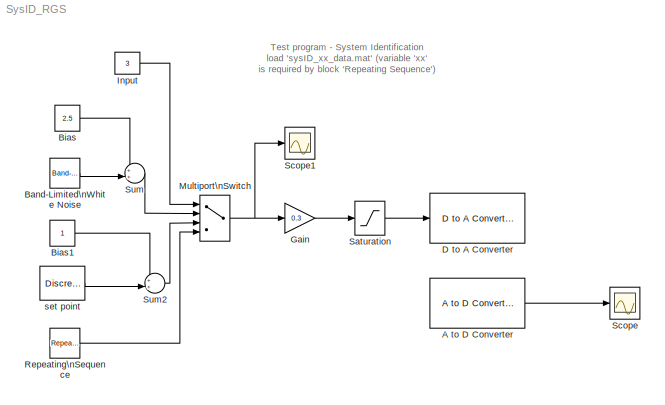
MODEL SysID_RGS
KIND model
CONFIG PreLoadFcn = load sysID_velocity.mat
BLOCK [Reference] A to D Converter  REF=mc9s12tool/A to D Converter
  FunctionWithSeparateData = off
  Ports = [0, 1]
  RTWMemSecDataConstants = Inherit from model
  RTWMemSecDataInternal = Inherit from model
  RTWMemSecDataParameters = Inherit from model
  RTWMemSecFuncExecute = Inherit from model
  RTWMemSecFuncInitTerm = Inherit from model
  SID = 18
  ShowPortLabels = none
  SourceBlock = mc9s12tool/A to D Converter
  SourceType = Unknown
  SystemSampleTime = -1
  Tag = mcTarget_adc
  bank = 0
  channels = 3
  normalize = max. output:  5
  sampletime = 0.01
  use10bits = 10 bits
BLOCK [Reference] Band-Limited\nWhite Noise  REF=simulink/Sources/Band-Limited\nWhite Noise
  Cov = [0.05]
  FunctionWithSeparateData = off
  Ports = [0, 1]
  RTWMemSecDataConstants = Inherit from model
  RTWMemSecDataInternal = Inherit from model
  RTWMemSecDataParameters = Inherit from model
  RTWMemSecFuncExecute = Inherit from model
  RTWMemSecFuncInitTerm = Inherit from model
  SID = 2
  ShowPortLabels = FromPortIcon
  SourceBlock = simulink/Sources/Band-Limited\nWhite Noise
  SourceProductBaseCode = SL
  SourceProductName = Simulink
  SourceType = Band-Limited White Noise.
  SystemSampleTime = -1
  Ts = 0.1
  VectorParams1D = on
  seed = [23341]
BLOCK [Constant] Bias
  SID = 3
  Value = 2.5
BLOCK [Constant] Bias1
  SID = 4
BLOCK [Reference] D to A Converter  REF=mc9s12tool/D to A Converter
  FunctionWithSeparateData = off
  Ports = [1]
  RTWMemSecDataConstants = Inherit from model
  RTWMemSecDataInternal = Inherit from model
  RTWMemSecDataParameters = Inherit from model
  RTWMemSecFuncExecute = Inherit from model
  RTWMemSecFuncInitTerm = Inherit from model
  SID = 19
  ShowPortLabels = FromPortIcon
  SourceBlock = mc9s12tool/D to A Converter
  SourceType = Unknown
  SystemSampleTime = -1
  Tag = mcTarget_dac
  Vsat = 5
  dac_channel = 0
  sampletime = 0.01
BLOCK [Gain] Gain
  Gain = 0.3
  SID = 6
BLOCK [Constant] Input
  SID = 7
  Value = 3
BLOCK [MultiPortSwitch] Multiport\nSwitch
  InputSameDT = off
  Ports = [4, 1]
  SID = 8
BLOCK [Reference] Repeating\nSequence  REF=simulink/Sources/Repeating\nSequence
  FunctionWithSeparateData = off
  Ports = [0, 1]
  RTWMemSecDataConstants = Inherit from model
  RTWMemSecDataInternal = Inherit from model
  RTWMemSecDataParameters = Inherit from model
  RTWMemSecFuncExecute = Inherit from model
  RTWMemSecFuncInitTerm = Inherit from model
  SID = 9
  ShowPortLabels = FromPortIcon
  SourceBlock = simulink/Sources/Repeating\nSequence
  SourceProductBaseCode = SL
  SourceProductName = Simulink
  SourceType = Repeating table
  SystemSampleTime = -1
  rep_seq_t = t
  rep_seq_y = s
BLOCK [Saturate] Saturation
  InputPortMap = u0
  LowerLimit = 0
  Ports = [1, 1]
  SID = 10
  UpperLimit = 5
BLOCK [Scope] Scope
  ExtModeUploadOption = log
  Floating = off
  NumInputPorts = 1
  Ports = [1]
  SID = 11
  ScopeSpecificationString = C++SS(StrPVP('Location','[667, 491, 991, 730]'),StrPVP('Open','off'),MxPVP('AxesTitles',54,'struct(''axes1'',''%<SignalLabel>'')'),StrPVP('TimeRange','8'),StrPVP('YMin','-0.5'),StrPVP('YMax','5.5'),StrPVP('SaveToWorkspace','on'),StrPVP('SaveName','y'),StrPVP('DataFormat','StructureWithTime'),StrPVP('LimitDataPoints','off'),StrPVP('Decimation','1'),StrPVP('BlockParamSampleInput','off'))
BLOCK [Scope] Scope1
  ExtModeUploadOption = log
  Floating = off
  NumInputPorts = 1
  Ports = [1]
  SID = 12
  ScopeSpecificationString = C++SS(StrPVP('Location','[333, 491, 657, 730]'),StrPVP('Open','off'),MxPVP('AxesTitles',54,'struct(''axes1'',''%<SignalLabel>'')'),StrPVP('TimeRange','8'),StrPVP('YMin','-0.5'),StrPVP('YMax','5.5'),StrPVP('SaveToWorkspace','on'),StrPVP('SaveName','x'),StrPVP('DataFormat','StructureWithTime'),StrPVP('LimitDataPoints','off'),StrPVP('Decimation','1'),StrPVP('BlockParamSampleInput','off'))
BLOCK [Sum] Sum
  IconShape = round
  InputSameDT = off
  Inputs = ++|
  OutDataTypeStr = Inherit: Inherit via internal rule
  Ports = [2, 1]
  SID = 13
BLOCK [Sum] Sum2
  IconShape = round
  InputSameDT = off
  Inputs = ++|
  OutDataTypeStr = Inherit: Inherit via internal rule
  Ports = [2, 1]
  SID = 14
BLOCK [DiscretePulseGenerator] set point
  Amplitude = 3
  Ports = [0, 1]
  PulseType = Time based
  PulseWidth = 50
  SID = 15
ANNOTATION (root): Test program - System Identification\nload 'sysID_xx_data.mat' (variable 'xx'\nis required by block 'Repeating Sequence')
LINE A to D Converter:1 -> Scope:1
LINE Band-Limited\nWhite Noise:1 -> Sum:2
LINE Bias1:1 -> Sum2:1
LINE Bias:1 -> Sum:1
LINE Gain:1 -> Saturation:1
LINE Input:1 -> Multiport\nSwitch:1
NET Multiport\nSwitch:1 -> Gain:1, Scope1:1
LINE Repeating\nSequence:1 -> Multiport\nSwitch:4
LINE Saturation:1 -> D to A Converter:1
LINE Sum2:1 -> Multiport\nSwitch:3
LINE Sum:1 -> Multiport\nSwitch:2
LINE set point:1 -> Sum2:2
note: NET lines group one-source signal fan-out (src -> all destinations, sorted); 1:1 wires keep LINE
